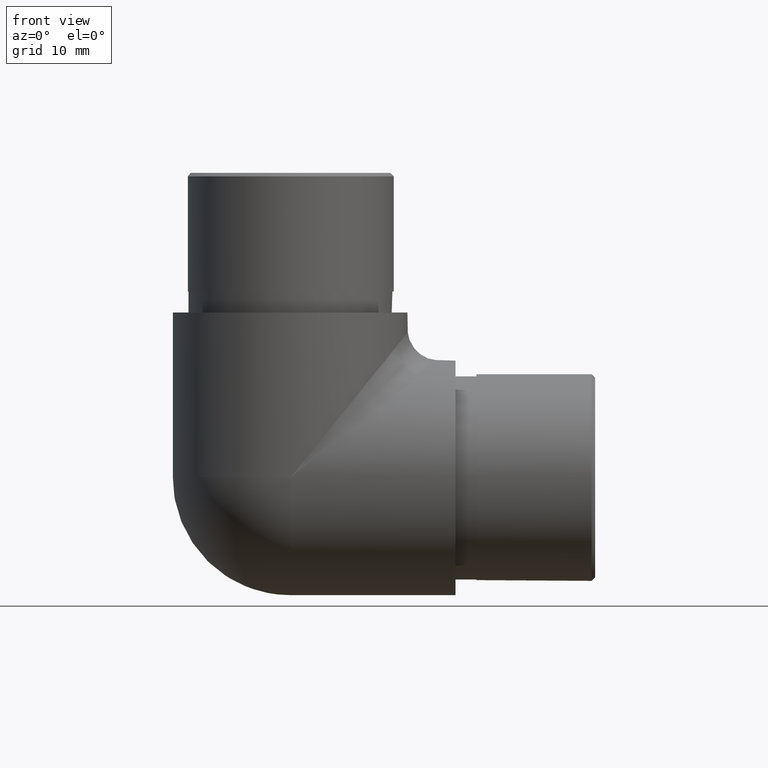
[diagram: clean part render]
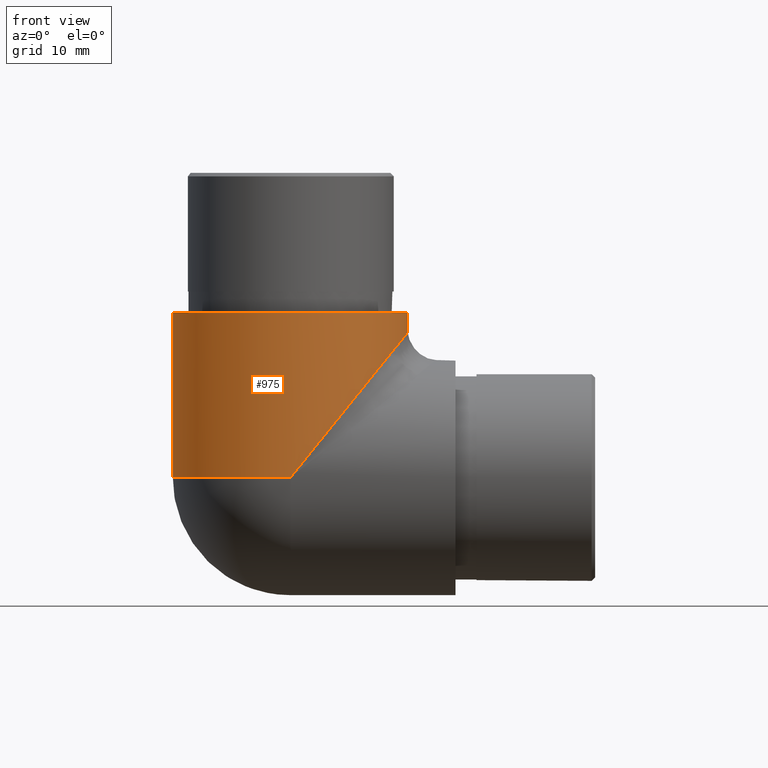
[diagram: same view with one face highlighted and labeled with its STEP entity id]
A machine part, front view. The second image highlights one B-rep face of the part: STEP entity #975.
In plain terms, the highlighted cylindrical surface (bore or boss wall) has radius 16.85 mm, axis along (-0, -0, 1).
Its self-contained STEP definition (entity closure, byte-faithful):
#2 = DIRECTION ( 'NONE',  ( 1.000000000000000000, 0.0000000000000000000, 0.0000000000000000000 ) ) ;
#40 = AXIS2_PLACEMENT_3D ( 'NONE', #339, #924, #594 ) ;
#64 = EDGE_CURVE ( 'NONE', #741, #741, #635, .T. ) ;
#68 = VERTEX_POINT ( 'NONE', #321 ) ;
#79 = ORIENTED_EDGE ( 'NONE', *, *, #877, .T. ) ;
#106 = CARTESIAN_POINT ( 'NONE',  ( 24.38557694080397200, 16.29392158518265200, 47.02443793565358000 ) ) ;
#159 = ORIENTED_EDGE ( 'NONE', *, *, #226, .T. ) ;
#190 = AXIS2_PLACEMENT_3D ( 'NONE', #499, #326, #2 ) ;
#226 = EDGE_CURVE ( 'NONE', #68, #814, #234, .T. ) ;
#232 = AXIS2_PLACEMENT_3D ( 'NONE', #787, #441, #617 ) ;
#234 = CIRCLE ( 'NONE', #190, 16.85000000000000100 ) ;
#269 = CARTESIAN_POINT ( 'NONE',  ( 0.0000000000000000000, -6.938893903907228400E-015, 16.84999999999999800 ) ) ;
#293 =( BOUNDED_CURVE ( )  B_SPLINE_CURVE ( 3, ( #269, #343, #106, #357 ),
 .UNSPECIFIED., .F., .F. ) 
 B_SPLINE_CURVE_WITH_KNOTS ( ( 4, 4 ),
 ( 4.712388980384689700, 7.068583470577033600 ),
 .UNSPECIFIED. ) 
 CURVE ( )  GEOMETRIC_REPRESENTATION_ITEM ( )  RATIONAL_B_SPLINE_CURVE ( ( 1.000000000000000000, 0.5884556215767268200, 0.5884556215767268200, 1.000000000000000000 ) ) 
 REPRESENTATION_ITEM ( '' )  );
#321 = CARTESIAN_POINT ( 'NONE',  ( -16.85000000000000500, 16.84999999999998400, 16.84999999999999400 ) ) ;
#326 = DIRECTION ( 'NONE',  ( -0.0000000000000000000, -0.0000000000000000000, 1.000000000000000000 ) ) ;
#339 = CARTESIAN_POINT ( 'NONE',  ( 0.0000000000000000000, 16.85000000000000100, 40.50000000000000000 ) ) ;
#343 = CARTESIAN_POINT ( 'NONE',  ( 17.63641363597758300, -6.709203578114416100E-015, 38.67309936558650200 ) ) ;
#357 = CARTESIAN_POINT ( 'NONE',  ( 11.91474926299332700, 28.76474926299331300, 31.59317638773950800 ) ) ;
#374 = CARTESIAN_POINT ( 'NONE',  ( -16.85000000000000100, 16.85000000000000100, 40.50000000000000000 ) ) ;
#378 =( BOUNDED_CURVE ( )  B_SPLINE_CURVE ( 3, ( #711, #707, #794, #1045 ),
 .UNSPECIFIED., .F., .F. ) 
 B_SPLINE_CURVE_WITH_KNOTS ( ( 4, 4 ),
 ( 5.497787143782138000, 7.853981633974483700 ),
 .UNSPECIFIED. ) 
 CURVE ( )  GEOMETRIC_REPRESENTATION_ITEM ( )  RATIONAL_B_SPLINE_CURVE ( ( 1.000000000000000000, 0.5884556215767262600, 0.5884556215767262600, 1.000000000000000000 ) ) 
 REPRESENTATION_ITEM ( '' )  );
#409 = FACE_OUTER_BOUND ( 'NONE', #430, .T. ) ;
#430 = EDGE_LOOP ( 'NONE', ( #159, #542, #79 ) ) ;
#432 = VERTEX_POINT ( 'NONE', #523 ) ;
#440 = EDGE_CURVE ( 'NONE', #814, #432, #293, .T. ) ;
#441 = DIRECTION ( 'NONE',  ( -0.0000000000000000000, -0.0000000000000000000, 1.000000000000000000 ) ) ;
#485 = FACE_OUTER_BOUND ( 'NONE', #637, .T. ) ;
#499 = CARTESIAN_POINT ( 'NONE',  ( 0.0000000000000000000, 16.85000000000000100, 16.84999999999999800 ) ) ;
#523 = CARTESIAN_POINT ( 'NONE',  ( 11.91474926299332700, 28.76474926299331300, 31.59317638773950800 ) ) ;
#540 = CARTESIAN_POINT ( 'NONE',  ( 0.0000000000000000000, -6.938893903907228400E-015, 16.84999999999999800 ) ) ;
#542 = ORIENTED_EDGE ( 'NONE', *, *, #440, .T. ) ;
#594 = DIRECTION ( 'NONE',  ( -1.000000000000000000, 0.0000000000000000000, 0.0000000000000000000 ) ) ;
#617 = DIRECTION ( 'NONE',  ( 1.000000000000000000, 0.0000000000000000000, 0.0000000000000000000 ) ) ;
#635 = CIRCLE ( 'NONE', #40, 16.85000000000000100 ) ;
#637 = EDGE_LOOP ( 'NONE', ( #739 ) ) ;
#707 = CARTESIAN_POINT ( 'NONE',  ( -0.5560784148173330000, 41.23557694080398100, 47.02443793565361600 ) ) ;
#711 = CARTESIAN_POINT ( 'NONE',  ( 11.91474926299332700, 28.76474926299331300, 31.59317638773950800 ) ) ;
#739 = ORIENTED_EDGE ( 'NONE', *, *, #64, .T. ) ;
#741 = VERTEX_POINT ( 'NONE', #374 ) ;
#787 = CARTESIAN_POINT ( 'NONE',  ( 0.0000000000000000000, 16.85000000000000100, -30.80899705197330000 ) ) ;
#794 = CARTESIAN_POINT ( 'NONE',  ( -16.85000000000001200, 34.48641363597759800, 38.67309936558653000 ) ) ;
#814 = VERTEX_POINT ( 'NONE', #540 ) ;
#877 = EDGE_CURVE ( 'NONE', #432, #68, #378, .T. ) ;
#921 = CYLINDRICAL_SURFACE ( 'NONE', #232, 16.85000000000000100 ) ;
#924 = DIRECTION ( 'NONE',  ( 0.0000000000000000000, 0.0000000000000000000, -1.000000000000000000 ) ) ;
#975 = ADVANCED_FACE ( 'NONE', ( #485, #409 ), #921, .T. ) ;
#1045 = CARTESIAN_POINT ( 'NONE',  ( -16.85000000000000500, 16.84999999999998400, 16.84999999999999400 ) ) ;